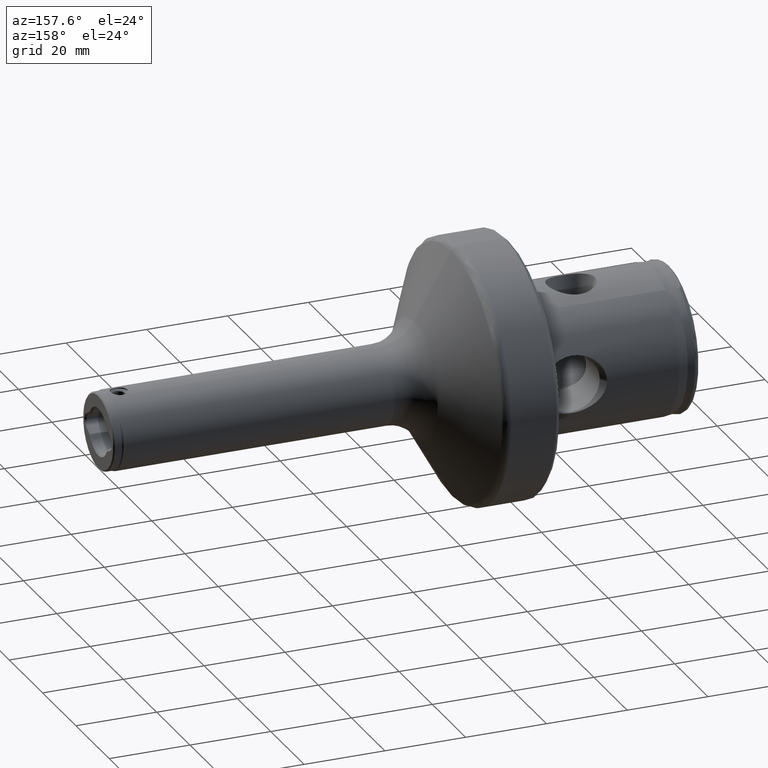
[diagram: clean part render]
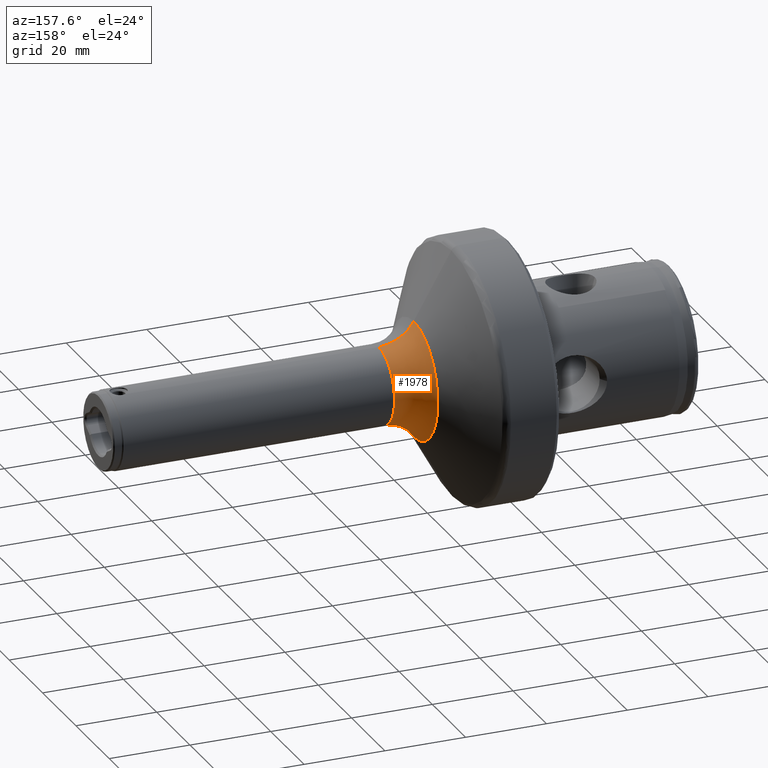
[diagram: same view with one face highlighted and labeled with its STEP entity id]
A machine part, auxiliary view. The second image highlights one B-rep face of the part: STEP entity #1978.
In plain terms, the highlighted toroidal blend (fillet) surface has major radius 19.5 mm and minor (blend) radius 10 mm.
Its self-contained STEP definition (entity closure, byte-faithful):
#31 = CIRCLE ( 'NONE', #840, 9.500000000000000000 ) ;
#217 = DIRECTION ( 'NONE',  ( -1.000000000000000000, -0.0000000000000000000, -0.0000000000000000000 ) ) ;
#222 = CARTESIAN_POINT ( 'NONE',  ( 63.39289686256407900, 2.763721663975791900E-015, -14.50000000000005200 ) ) ;
#321 = DIRECTION ( 'NONE',  ( 0.0000000000000000000, -1.000000000000000000, 0.0000000000000000000 ) ) ;
#419 = AXIS2_PLACEMENT_3D ( 'NONE', #1092, #3248, #1404 ) ;
#840 = AXIS2_PLACEMENT_3D ( 'NONE', #2797, #974, #3116 ) ;
#974 = DIRECTION ( 'NONE',  ( 1.000000000000000000, 0.0000000000000000000, 0.0000000000000000000 ) ) ;
#1015 = AXIS2_PLACEMENT_3D ( 'NONE', #2664, #217, #1457 ) ;
#1032 = VERTEX_POINT ( 'NONE', #2194 ) ;
#1091 = FACE_OUTER_BOUND ( 'NONE', #2187, .T. ) ;
#1092 = CARTESIAN_POINT ( 'NONE',  ( 72.05315090040849700, 2.388061258337338900E-015, -19.50000000000000000 ) ) ;
#1181 = EDGE_CURVE ( 'NONE', #1313, #3767, #1502, .T. ) ;
#1313 = VERTEX_POINT ( 'NONE', #222 ) ;
#1404 = DIRECTION ( 'NONE',  ( 0.0000000000000000000, -1.224646799147353200E-016, 1.000000000000000000 ) ) ;
#1457 = DIRECTION ( 'NONE',  ( 0.0000000000000000000, 0.0000000000000000000, 1.000000000000000000 ) ) ;
#1484 = ORIENTED_EDGE ( 'NONE', *, *, #1181, .F. ) ;
#1502 = CIRCLE ( 'NONE', #419, 10.00000000000000000 ) ;
#1532 = CIRCLE ( 'NONE', #2461, 10.00000000000000000 ) ;
#1537 = CARTESIAN_POINT ( 'NONE',  ( 63.39289686256407900, 0.0000000000000000000, 0.0000000000000000000 ) ) ;
#1846 = DIRECTION ( 'NONE',  ( 0.0000000000000000000, 0.0000000000000000000, 1.000000000000000000 ) ) ;
#1978 = ADVANCED_FACE ( 'NONE', ( #1091 ), #2627, .F. ) ;
#2082 = ORIENTED_EDGE ( 'NONE', *, *, #3367, .F. ) ;
#2084 = EDGE_CURVE ( 'NONE', #3415, #1032, #1532, .T. ) ;
#2163 = CARTESIAN_POINT ( 'NONE',  ( 72.05315090040849700, 0.0000000000000000000, 19.50000000000000000 ) ) ;
#2187 = EDGE_LOOP ( 'NONE', ( #1484, #3363, #2200, #2082 ) ) ;
#2194 = CARTESIAN_POINT ( 'NONE',  ( 72.05315090040849700, 0.0000000000000000000, 9.500000000000000000 ) ) ;
#2200 = ORIENTED_EDGE ( 'NONE', *, *, #2084, .T. ) ;
#2461 = AXIS2_PLACEMENT_3D ( 'NONE', #2163, #321, #2467 ) ;
#2467 = DIRECTION ( 'NONE',  ( 0.0000000000000000000, 0.0000000000000000000, -1.000000000000000000 ) ) ;
#2627 = TOROIDAL_SURFACE ( 'NONE', #1015, 19.50000000000000000, 10.00000000000000000 ) ;
#2653 = CARTESIAN_POINT ( 'NONE',  ( 72.05315090040849700, 1.163414459189985500E-015, -9.500000000000000000 ) ) ;
#2664 = CARTESIAN_POINT ( 'NONE',  ( 72.05315090040849700, 0.0000000000000000000, 0.0000000000000000000 ) ) ;
#2757 = CIRCLE ( 'NONE', #2808, 14.50000000000005200 ) ;
#2797 = CARTESIAN_POINT ( 'NONE',  ( 72.05315090040849700, 0.0000000000000000000, 0.0000000000000000000 ) ) ;
#2808 = AXIS2_PLACEMENT_3D ( 'NONE', #1537, #3662, #1846 ) ;
#3116 = DIRECTION ( 'NONE',  ( 0.0000000000000000000, 0.0000000000000000000, 1.000000000000000000 ) ) ;
#3248 = DIRECTION ( 'NONE',  ( -0.0000000000000000000, 1.000000000000000000, 1.224646799147353200E-016 ) ) ;
#3363 = ORIENTED_EDGE ( 'NONE', *, *, #3850, .F. ) ;
#3367 = EDGE_CURVE ( 'NONE', #3767, #1032, #31, .T. ) ;
#3415 = VERTEX_POINT ( 'NONE', #3428 ) ;
#3428 = CARTESIAN_POINT ( 'NONE',  ( 63.39289686256407900, 0.0000000000000000000, 14.50000000000005200 ) ) ;
#3662 = DIRECTION ( 'NONE',  ( -1.000000000000000000, -0.0000000000000000000, -0.0000000000000000000 ) ) ;
#3767 = VERTEX_POINT ( 'NONE', #2653 ) ;
#3850 = EDGE_CURVE ( 'NONE', #3415, #1313, #2757, .T. ) ;